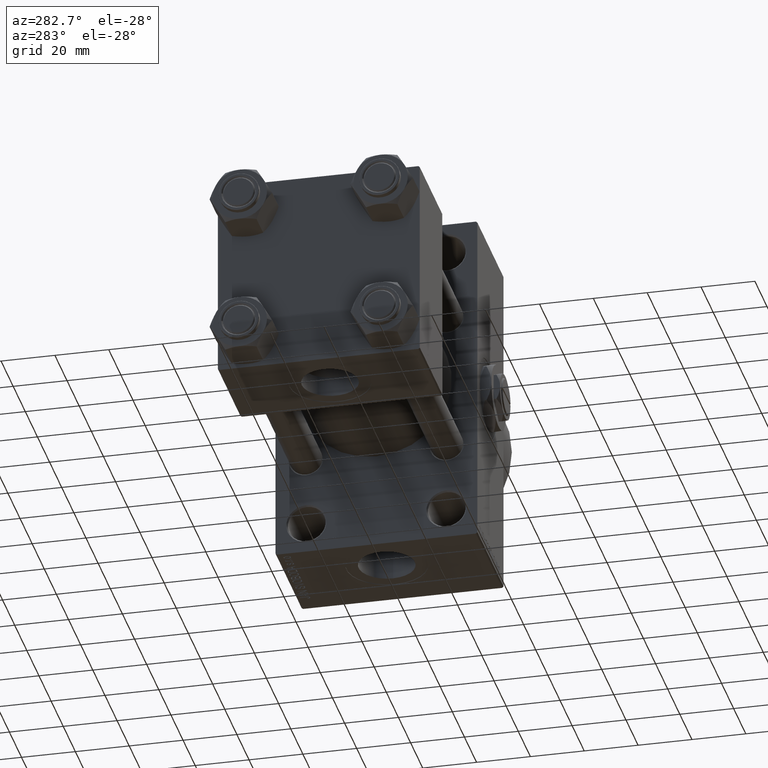
[diagram: clean part render]
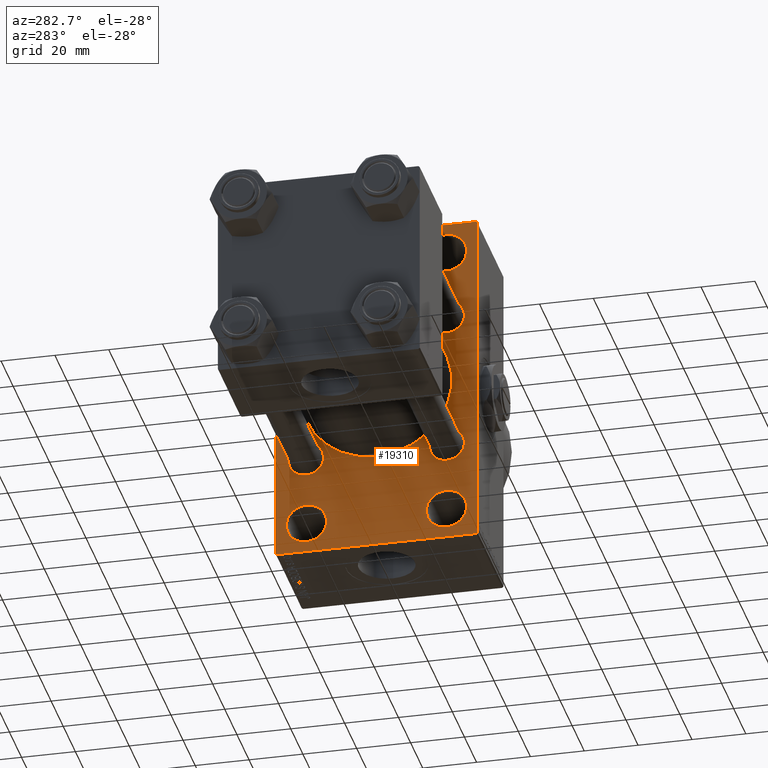
[diagram: same view with one face highlighted and labeled with its STEP entity id]
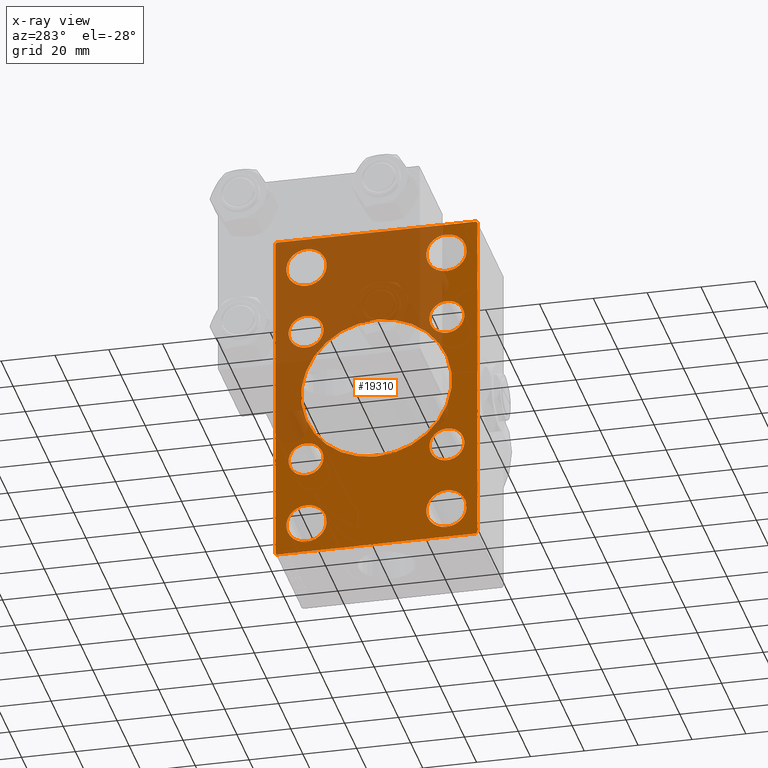
[diagram: x-ray of the same camera — body ghosted, the highlighted face saturated]
A machine part, auxiliary view. The second image highlights one B-rep face of the part: STEP entity #19310.
The next image is the same camera in x-ray: the body ghosted, the highlighted face saturated — about 43% of this face is hidden behind the body in this view.
In plain terms, the highlighted planar face has unit normal (-1, 0, 0).
Its self-contained STEP definition (entity closure, byte-faithful):
#265 = ORIENTED_EDGE ( 'NONE', *, *, #298, .T. ) ;
#298 = EDGE_CURVE ( 'NONE', #41136, #2890, #21021, .T. ) ;
#438 = FACE_BOUND ( 'NONE', #38657, .T. ) ;
#493 = AXIS2_PLACEMENT_3D ( 'NONE', #21912, #6878, #44510 ) ;
#624 = ORIENTED_EDGE ( 'NONE', *, *, #45896, .T. ) ;
#736 = EDGE_CURVE ( 'NONE', #7991, #19808, #7407, .T. ) ;
#1063 = ORIENTED_EDGE ( 'NONE', *, *, #25673, .F. ) ;
#1673 = EDGE_LOOP ( 'NONE', ( #23018, #17743 ) ) ;
#2156 = AXIS2_PLACEMENT_3D ( 'NONE', #31258, #27248, #34521 ) ;
#2248 = CARTESIAN_POINT ( 'NONE',  ( 95.00000000000000000, 26.14999999999999858, -26.15000000000000213 ) ) ;
#2350 = CARTESIAN_POINT ( 'NONE',  ( 95.00000000000000000, -25.99999999999999645, -59.99999999999997158 ) ) ;
#2378 = DIRECTION ( 'NONE',  ( 1.000000000000000000, -0.000000000000000000, 0.000000000000000000 ) ) ;
#2513 = VERTEX_POINT ( 'NONE', #23104 ) ;
#2633 = DIRECTION ( 'NONE',  ( 0.000000000000000000, -0.7071067811865574537, 0.7071067811865376918 ) ) ;
#2635 = EDGE_CURVE ( 'NONE', #7098, #20376, #28977, .T. ) ;
#2697 = DIRECTION ( 'NONE',  ( 0.000000000000000000, 0.000000000000000000, -1.000000000000000000 ) ) ;
#2890 = VERTEX_POINT ( 'NONE', #37342 ) ;
#2966 = CARTESIAN_POINT ( 'NONE',  ( 95.00000000000000000, 26.00000000000000000, -45.00000000000001421 ) ) ;
#3103 = LINE ( 'NONE', #33704, #36259 ) ;
#3816 = DIRECTION ( 'NONE',  ( 0.000000000000000000, 0.000000000000000000, 1.000000000000000000 ) ) ;
#3878 = DIRECTION ( 'NONE',  ( 1.000000000000000000, -0.000000000000000000, 0.000000000000000000 ) ) ;
#4153 = AXIS2_PLACEMENT_3D ( 'NONE', #23758, #42355, #38328 ) ;
#4870 = DIRECTION ( 'NONE',  ( 0.000000000000000000, 0.000000000000000000, 1.000000000000000000 ) ) ;
#5065 = VERTEX_POINT ( 'NONE', #7087 ) ;
#5524 = DIRECTION ( 'NONE',  ( 0.000000000000000000, 0.000000000000000000, 1.000000000000000000 ) ) ;
#5729 = ORIENTED_EDGE ( 'NONE', *, *, #46210, .T. ) ;
#5847 = CARTESIAN_POINT ( 'NONE',  ( 95.00000000000000000, -25.99999999999999645, 59.99999999999997868 ) ) ;
#5849 = CIRCLE ( 'NONE', #40319, 6.500000000000008882 ) ;
#6149 = EDGE_CURVE ( 'NONE', #20376, #7098, #25078, .T. ) ;
#6161 = EDGE_LOOP ( 'NONE', ( #624, #9248 ) ) ;
#6238 = EDGE_LOOP ( 'NONE', ( #265, #12338 ) ) ;
#6261 = DIRECTION ( 'NONE',  ( 1.000000000000000000, -0.000000000000000000, 0.000000000000000000 ) ) ;
#6524 = DIRECTION ( 'NONE',  ( 1.000000000000000000, -0.000000000000000000, 0.000000000000000000 ) ) ;
#6720 = EDGE_LOOP ( 'NONE', ( #8223, #28320 ) ) ;
#6742 = ORIENTED_EDGE ( 'NONE', *, *, #21429, .T. ) ;
#6878 = DIRECTION ( 'NONE',  ( 1.000000000000000000, -0.000000000000000000, 0.000000000000000000 ) ) ;
#7087 = CARTESIAN_POINT ( 'NONE',  ( 95.00000000000000000, 8.269258236473776482E-16, -28.00000000000000000 ) ) ;
#7098 = VERTEX_POINT ( 'NONE', #34851 ) ;
#7328 = DIRECTION ( 'NONE',  ( 1.000000000000000000, -0.000000000000000000, 0.000000000000000000 ) ) ;
#7407 = CIRCLE ( 'NONE', #28231, 7.499999999999978684 ) ;
#7519 = DIRECTION ( 'NONE',  ( 0.000000000000000000, 0.000000000000000000, 1.000000000000000000 ) ) ;
#7599 = EDGE_CURVE ( 'NONE', #2513, #37289, #33130, .T. ) ;
#7727 = FACE_BOUND ( 'NONE', #6238, .T. ) ;
#7991 = VERTEX_POINT ( 'NONE', #8277 ) ;
#8223 = ORIENTED_EDGE ( 'NONE', *, *, #26078, .T. ) ;
#8277 = CARTESIAN_POINT ( 'NONE',  ( 95.00000000000000000, -25.99999999999999645, 45.00000000000002132 ) ) ;
#8448 = CARTESIAN_POINT ( 'NONE',  ( 95.00000000000000000, -36.99999999999995737, 63.99999999999997158 ) ) ;
#9248 = ORIENTED_EDGE ( 'NONE', *, *, #31236, .T. ) ;
#9370 = DIRECTION ( 'NONE',  ( 1.000000000000000000, -0.000000000000000000, 0.000000000000000000 ) ) ;
#9497 = VERTEX_POINT ( 'NONE', #2350 ) ;
#9548 = DIRECTION ( 'NONE',  ( 0.000000000000000000, 0.000000000000000000, -1.000000000000000000 ) ) ;
#9595 = CARTESIAN_POINT ( 'NONE',  ( 95.00000000000000000, 36.99999999999999289, -64.00000000000000000 ) ) ;
#9785 = CARTESIAN_POINT ( 'NONE',  ( 95.00000000000000000, -25.99999999999999645, 52.50000000000000000 ) ) ;
#10043 = DIRECTION ( 'NONE',  ( 0.000000000000000000, 0.000000000000000000, 1.000000000000000000 ) ) ;
#10978 = DIRECTION ( 'NONE',  ( 1.000000000000000000, 0.000000000000000000, 0.000000000000000000 ) ) ;
#11721 = EDGE_CURVE ( 'NONE', #12171, #9497, #26888, .T. ) ;
#11771 = CARTESIAN_POINT ( 'NONE',  ( 95.00000000000000000, 26.14999999999999858, 26.15000000000000213 ) ) ;
#12171 = VERTEX_POINT ( 'NONE', #45825 ) ;
#12230 = DIRECTION ( 'NONE',  ( 0.000000000000000000, 0.000000000000000000, 1.000000000000000000 ) ) ;
#12338 = ORIENTED_EDGE ( 'NONE', *, *, #12362, .T. ) ;
#12362 = EDGE_CURVE ( 'NONE', #2890, #41136, #39740, .T. ) ;
#12395 = DIRECTION ( 'NONE',  ( 0.000000000000000000, 0.000000000000000000, 1.000000000000000000 ) ) ;
#12403 = AXIS2_PLACEMENT_3D ( 'NONE', #33429, #7328, #3816 ) ;
#12822 = ORIENTED_EDGE ( 'NONE', *, *, #7599, .T. ) ;
#12839 = VERTEX_POINT ( 'NONE', #24768 ) ;
#12884 = ORIENTED_EDGE ( 'NONE', *, *, #23032, .T. ) ;
#13051 = VECTOR ( 'NONE', #38660, 1000.000000000000000 ) ;
#13465 = EDGE_LOOP ( 'NONE', ( #15343, #17168 ) ) ;
#13632 = ORIENTED_EDGE ( 'NONE', *, *, #18310, .T. ) ;
#13862 = AXIS2_PLACEMENT_3D ( 'NONE', #9785, #6524, #10043 ) ;
#13911 = DIRECTION ( 'NONE',  ( 0.000000000000000000, 0.000000000000000000, 1.000000000000000000 ) ) ;
#14141 = AXIS2_PLACEMENT_3D ( 'NONE', #31210, #39479, #31704 ) ;
#14550 = ORIENTED_EDGE ( 'NONE', *, *, #27156, .T. ) ;
#14925 = CARTESIAN_POINT ( 'NONE',  ( 95.00000000000000000, 26.00000000000000000, 52.49999999999999289 ) ) ;
#14946 = CARTESIAN_POINT ( 'NONE',  ( 95.00000000000000000, -37.49999999999999289, -63.49999999999997158 ) ) ;
#15108 = CARTESIAN_POINT ( 'NONE',  ( 95.00000000000000000, -26.14999999999999147, 32.65000000000001990 ) ) ;
#15343 = ORIENTED_EDGE ( 'NONE', *, *, #35918, .T. ) ;
#15968 = LINE ( 'NONE', #31275, #21140 ) ;
#16300 = VERTEX_POINT ( 'NONE', #17703 ) ;
#17064 = CIRCLE ( 'NONE', #13862, 7.499999999999978684 ) ;
#17168 = ORIENTED_EDGE ( 'NONE', *, *, #37582, .T. ) ;
#17241 = CIRCLE ( 'NONE', #45310, 28.00000000000000000 ) ;
#17379 = VERTEX_POINT ( 'NONE', #23674 ) ;
#17566 = CARTESIAN_POINT ( 'NONE',  ( 95.00000000000000000, -2.602085213965210642E-15, 0.000000000000000000 ) ) ;
#17703 = CARTESIAN_POINT ( 'NONE',  ( 95.00000000000000000, 36.99999999999997158, 63.99999999999998579 ) ) ;
#17743 = ORIENTED_EDGE ( 'NONE', *, *, #19336, .T. ) ;
#17768 = CARTESIAN_POINT ( 'NONE',  ( 95.00000000000000000, 26.00000000000000000, 59.99999999999997158 ) ) ;
#18310 = EDGE_CURVE ( 'NONE', #37289, #2513, #18957, .T. ) ;
#18595 = LINE ( 'NONE', #48978, #39956 ) ;
#18620 = ORIENTED_EDGE ( 'NONE', *, *, #38805, .T. ) ;
#18633 = EDGE_CURVE ( 'NONE', #29634, #35462, #26033, .T. ) ;
#18957 = CIRCLE ( 'NONE', #14141, 7.499999999999978684 ) ;
#19002 = CIRCLE ( 'NONE', #2156, 7.499999999999978684 ) ;
#19243 = FACE_BOUND ( 'NONE', #21049, .T. ) ;
#19310 = ADVANCED_FACE ( 'NONE', ( #38825, #438, #26790, #46360, #42109, #42587, #19243, #7727, #22771, #23020 ), #38080, .T. ) ;
#19336 = EDGE_CURVE ( 'NONE', #35462, #29634, #49041, .T. ) ;
#19663 = DIRECTION ( 'NONE',  ( 0.000000000000000000, 0.000000000000000000, 1.000000000000000000 ) ) ;
#19801 = EDGE_CURVE ( 'NONE', #22046, #45435, #38617, .T. ) ;
#19808 = VERTEX_POINT ( 'NONE', #5847 ) ;
#19860 = CIRCLE ( 'NONE', #28673, 7.499999999999978684 ) ;
#19926 = CARTESIAN_POINT ( 'NONE',  ( 95.00000000000000000, -26.14999999999999147, -26.15000000000000924 ) ) ;
#20376 = VERTEX_POINT ( 'NONE', #21456 ) ;
#21021 = CIRCLE ( 'NONE', #47471, 6.500000000000008882 ) ;
#21049 = EDGE_LOOP ( 'NONE', ( #35598, #21105 ) ) ;
#21058 = ORIENTED_EDGE ( 'NONE', *, *, #28076, .T. ) ;
#21105 = ORIENTED_EDGE ( 'NONE', *, *, #6149, .T. ) ;
#21140 = VECTOR ( 'NONE', #38560, 1000.000000000000000 ) ;
#21429 = EDGE_CURVE ( 'NONE', #25172, #29046, #3103, .T. ) ;
#21456 = CARTESIAN_POINT ( 'NONE',  ( 95.00000000000000000, 26.14999999999999858, -32.65000000000001279 ) ) ;
#21901 = DIRECTION ( 'NONE',  ( -0.000000000000000000, 0.7071067811865524577, 0.7071067811865426878 ) ) ;
#21912 = CARTESIAN_POINT ( 'NONE',  ( 95.00000000000000000, -26.14999999999999147, -26.15000000000000924 ) ) ;
#22036 = DIRECTION ( 'NONE',  ( 0.000000000000000000, 0.000000000000000000, 1.000000000000000000 ) ) ;
#22046 = VERTEX_POINT ( 'NONE', #44909 ) ;
#22771 = FACE_BOUND ( 'NONE', #6161, .T. ) ;
#22812 = CARTESIAN_POINT ( 'NONE',  ( 95.00000000000000000, -26.14999999999999147, -19.65000000000000213 ) ) ;
#22814 = DIRECTION ( 'NONE',  ( 1.000000000000000000, -0.000000000000000000, 0.000000000000000000 ) ) ;
#22956 = ORIENTED_EDGE ( 'NONE', *, *, #11721, .T. ) ;
#23018 = ORIENTED_EDGE ( 'NONE', *, *, #18633, .T. ) ;
#23020 = FACE_OUTER_BOUND ( 'NONE', #25986, .T. ) ;
#23032 = EDGE_CURVE ( 'NONE', #19808, #7991, #17064, .T. ) ;
#23104 = CARTESIAN_POINT ( 'NONE',  ( 95.00000000000000000, 26.00000000000000000, 45.00000000000001421 ) ) ;
#23140 = CARTESIAN_POINT ( 'NONE',  ( 95.00000000000000000, -25.99999999999999645, 52.50000000000000000 ) ) ;
#23260 = EDGE_LOOP ( 'NONE', ( #12884, #45286 ) ) ;
#23537 = DIRECTION ( 'NONE',  ( 1.000000000000000000, -0.000000000000000000, 0.000000000000000000 ) ) ;
#23674 = CARTESIAN_POINT ( 'NONE',  ( 95.00000000000000000, 26.00000000000000000, -59.99999999999997158 ) ) ;
#23758 = CARTESIAN_POINT ( 'NONE',  ( 95.00000000000000000, 0.000000000000000000, 0.000000000000000000 ) ) ;
#23940 = CARTESIAN_POINT ( 'NONE',  ( 95.00000000000000000, 26.14999999999999858, 26.15000000000000213 ) ) ;
#24768 = CARTESIAN_POINT ( 'NONE',  ( 95.00000000000000000, 37.49999999999999289, -63.50000000000001421 ) ) ;
#24867 = CARTESIAN_POINT ( 'NONE',  ( 95.00000000000000000, -26.14999999999999147, 19.65000000000000213 ) ) ;
#25078 = CIRCLE ( 'NONE', #41139, 6.500000000000008882 ) ;
#25172 = VERTEX_POINT ( 'NONE', #30220 ) ;
#25538 = ORIENTED_EDGE ( 'NONE', *, *, #29298, .T. ) ;
#25673 = EDGE_CURVE ( 'NONE', #16300, #29046, #31145, .T. ) ;
#25986 = EDGE_LOOP ( 'NONE', ( #21058, #5729, #47097, #6742, #1063, #25538, #14550, #46950 ) ) ;
#26033 = CIRCLE ( 'NONE', #12403, 6.500000000000008882 ) ;
#26078 = EDGE_CURVE ( 'NONE', #45435, #22046, #5849, .T. ) ;
#26663 = DIRECTION ( 'NONE',  ( 1.000000000000000000, -0.000000000000000000, 0.000000000000000000 ) ) ;
#26790 = FACE_BOUND ( 'NONE', #13465, .T. ) ;
#26888 = CIRCLE ( 'NONE', #29266, 7.499999999999978684 ) ;
#27156 = EDGE_CURVE ( 'NONE', #27687, #12839, #15968, .T. ) ;
#27248 = DIRECTION ( 'NONE',  ( 1.000000000000000000, -0.000000000000000000, 0.000000000000000000 ) ) ;
#27687 = VERTEX_POINT ( 'NONE', #38368 ) ;
#27996 = DIRECTION ( 'NONE',  ( 0.000000000000000000, -1.000000000000000000, -1.850371707708594563E-16 ) ) ;
#28076 = EDGE_CURVE ( 'NONE', #28504, #38503, #47560, .T. ) ;
#28231 = AXIS2_PLACEMENT_3D ( 'NONE', #23140, #26663, #38452 ) ;
#28320 = ORIENTED_EDGE ( 'NONE', *, *, #19801, .T. ) ;
#28346 = DIRECTION ( 'NONE',  ( 1.000000000000000000, -0.000000000000000000, 0.000000000000000000 ) ) ;
#28504 = VERTEX_POINT ( 'NONE', #9595 ) ;
#28673 = AXIS2_PLACEMENT_3D ( 'NONE', #43339, #23537, #12230 ) ;
#28973 = LINE ( 'NONE', #29723, #34872 ) ;
#28977 = CIRCLE ( 'NONE', #30603, 6.500000000000008882 ) ;
#29025 = CARTESIAN_POINT ( 'NONE',  ( 95.00000000000000000, -2.602085213965210642E-15, 28.00000000000000000 ) ) ;
#29046 = VERTEX_POINT ( 'NONE', #8448 ) ;
#29082 = DIRECTION ( 'NONE',  ( 0.000000000000000000, 0.000000000000000000, 1.000000000000000000 ) ) ;
#29266 = AXIS2_PLACEMENT_3D ( 'NONE', #29818, #44374, #22036 ) ;
#29298 = EDGE_CURVE ( 'NONE', #16300, #27687, #28973, .T. ) ;
#29445 = AXIS2_PLACEMENT_3D ( 'NONE', #38253, #3878, #19663 ) ;
#29634 = VERTEX_POINT ( 'NONE', #15108 ) ;
#29723 = CARTESIAN_POINT ( 'NONE',  ( 95.00000000000000000, 50.49999999999894840, 50.50000000000176215 ) ) ;
#29818 = CARTESIAN_POINT ( 'NONE',  ( 95.00000000000000000, -25.99999999999999645, -52.49999999999999289 ) ) ;
#30220 = CARTESIAN_POINT ( 'NONE',  ( 95.00000000000000000, -37.49999999999999289, 63.49999999999994316 ) ) ;
#30603 = AXIS2_PLACEMENT_3D ( 'NONE', #43174, #28346, #5524 ) ;
#30621 = LINE ( 'NONE', #41929, #43984 ) ;
#30878 = DIRECTION ( 'NONE',  ( 0.000000000000000000, 0.000000000000000000, -1.000000000000000000 ) ) ;
#30895 = CARTESIAN_POINT ( 'NONE',  ( 95.00000000000000000, 37.50000000000000000, 63.99999999999998579 ) ) ;
#31145 = LINE ( 'NONE', #30895, #13051 ) ;
#31210 = CARTESIAN_POINT ( 'NONE',  ( 95.00000000000000000, 26.00000000000000000, 52.49999999999999289 ) ) ;
#31236 = EDGE_CURVE ( 'NONE', #5065, #38233, #17241, .T. ) ;
#31258 = CARTESIAN_POINT ( 'NONE',  ( 95.00000000000000000, 26.00000000000000000, -52.49999999999999289 ) ) ;
#31268 = CARTESIAN_POINT ( 'NONE',  ( 95.00000000000000000, -36.99999999999993605, -64.00000000000001421 ) ) ;
#31275 = CARTESIAN_POINT ( 'NONE',  ( 95.00000000000000000, 37.50000000000000000, 63.99999999999998579 ) ) ;
#31704 = DIRECTION ( 'NONE',  ( 0.000000000000000000, 0.000000000000000000, 1.000000000000000000 ) ) ;
#32326 = CIRCLE ( 'NONE', #36328, 28.00000000000000000 ) ;
#33130 = CIRCLE ( 'NONE', #36353, 7.499999999999978684 ) ;
#33429 = CARTESIAN_POINT ( 'NONE',  ( 95.00000000000000000, -26.14999999999999147, 26.15000000000000924 ) ) ;
#33471 = CIRCLE ( 'NONE', #29445, 7.499999999999978684 ) ;
#33503 = LINE ( 'NONE', #40536, #37917 ) ;
#33704 = CARTESIAN_POINT ( 'NONE',  ( 95.00000000000000000, -50.49999999999970868, 50.50000000000040501 ) ) ;
#33912 = DIRECTION ( 'NONE',  ( -0.000000000000000000, -0.7071067811865573427, -0.7071067811865378028 ) ) ;
#34071 = VERTEX_POINT ( 'NONE', #14946 ) ;
#34314 = CARTESIAN_POINT ( 'NONE',  ( 95.00000000000000000, -26.14999999999999147, 26.15000000000000924 ) ) ;
#34521 = DIRECTION ( 'NONE',  ( 0.000000000000000000, 0.000000000000000000, 1.000000000000000000 ) ) ;
#34851 = CARTESIAN_POINT ( 'NONE',  ( 95.00000000000000000, 26.14999999999999858, -19.64999999999999503 ) ) ;
#34872 = VECTOR ( 'NONE', #41285, 1000.000000000000000 ) ;
#35042 = DIRECTION ( 'NONE',  ( 0.000000000000000000, 0.000000000000000000, 1.000000000000000000 ) ) ;
#35462 = VERTEX_POINT ( 'NONE', #24867 ) ;
#35598 = ORIENTED_EDGE ( 'NONE', *, *, #2635, .T. ) ;
#35918 = EDGE_CURVE ( 'NONE', #47350, #17379, #19860, .T. ) ;
#36259 = VECTOR ( 'NONE', #21901, 1000.000000000000000 ) ;
#36328 = AXIS2_PLACEMENT_3D ( 'NONE', #48121, #10978, #2697 ) ;
#36353 = AXIS2_PLACEMENT_3D ( 'NONE', #14925, #2378, #13911 ) ;
#37289 = VERTEX_POINT ( 'NONE', #17768 ) ;
#37342 = CARTESIAN_POINT ( 'NONE',  ( 95.00000000000000000, -26.14999999999999147, -32.65000000000001990 ) ) ;
#37346 = EDGE_LOOP ( 'NONE', ( #13632, #12822 ) ) ;
#37582 = EDGE_CURVE ( 'NONE', #17379, #47350, #19002, .T. ) ;
#37917 = VECTOR ( 'NONE', #2633, 999.9999999999998863 ) ;
#38080 = PLANE ( 'NONE',  #4153 ) ;
#38233 = VERTEX_POINT ( 'NONE', #29025 ) ;
#38253 = CARTESIAN_POINT ( 'NONE',  ( 95.00000000000000000, -25.99999999999999645, -52.49999999999999289 ) ) ;
#38328 = DIRECTION ( 'NONE',  ( -0.000000000000000000, 0.000000000000000000, 1.000000000000000000 ) ) ;
#38368 = CARTESIAN_POINT ( 'NONE',  ( 95.00000000000000000, 37.50000000000000000, 63.49999999999998579 ) ) ;
#38452 = DIRECTION ( 'NONE',  ( 0.000000000000000000, 0.000000000000000000, 1.000000000000000000 ) ) ;
#38503 = VERTEX_POINT ( 'NONE', #31268 ) ;
#38560 = DIRECTION ( 'NONE',  ( 0.000000000000000000, -5.421010862427522170E-17, -1.000000000000000000 ) ) ;
#38567 = DIRECTION ( 'NONE',  ( 1.000000000000000000, -0.000000000000000000, 0.000000000000000000 ) ) ;
#38617 = CIRCLE ( 'NONE', #46646, 6.500000000000008882 ) ;
#38657 = EDGE_LOOP ( 'NONE', ( #22956, #18620 ) ) ;
#38660 = DIRECTION ( 'NONE',  ( 0.000000000000000000, -1.000000000000000000, -1.850371707708594563E-16 ) ) ;
#38805 = EDGE_CURVE ( 'NONE', #9497, #12171, #33471, .T. ) ;
#38825 = FACE_BOUND ( 'NONE', #23260, .T. ) ;
#39247 = CARTESIAN_POINT ( 'NONE',  ( 95.00000000000000000, 26.14999999999999858, 32.65000000000001990 ) ) ;
#39479 = DIRECTION ( 'NONE',  ( 1.000000000000000000, -0.000000000000000000, 0.000000000000000000 ) ) ;
#39740 = CIRCLE ( 'NONE', #493, 6.500000000000008882 ) ;
#39932 = DIRECTION ( 'NONE',  ( 1.000000000000000000, 0.000000000000000000, 0.000000000000000000 ) ) ;
#39956 = VECTOR ( 'NONE', #33912, 1000.000000000000000 ) ;
#40319 = AXIS2_PLACEMENT_3D ( 'NONE', #11771, #22814, #7519 ) ;
#40536 = CARTESIAN_POINT ( 'NONE',  ( 95.00000000000000000, -50.49999999999945999, -50.50000000000086686 ) ) ;
#40838 = EDGE_CURVE ( 'NONE', #12839, #28504, #18595, .T. ) ;
#41039 = AXIS2_PLACEMENT_3D ( 'NONE', #34314, #38567, #35042 ) ;
#41136 = VERTEX_POINT ( 'NONE', #22812 ) ;
#41139 = AXIS2_PLACEMENT_3D ( 'NONE', #2248, #6261, #29082 ) ;
#41285 = DIRECTION ( 'NONE',  ( 0.000000000000000000, 0.7071067811865672237, -0.7071067811865279218 ) ) ;
#41929 = CARTESIAN_POINT ( 'NONE',  ( 95.00000000000000000, -37.49999999999999289, 63.99999999999997158 ) ) ;
#42109 = FACE_BOUND ( 'NONE', #1673, .T. ) ;
#42248 = EDGE_CURVE ( 'NONE', #25172, #34071, #30621, .T. ) ;
#42355 = DIRECTION ( 'NONE',  ( -1.000000000000000000, 0.000000000000000000, -0.000000000000000000 ) ) ;
#42587 = FACE_BOUND ( 'NONE', #6720, .T. ) ;
#43174 = CARTESIAN_POINT ( 'NONE',  ( 95.00000000000000000, 26.14999999999999858, -26.15000000000000213 ) ) ;
#43339 = CARTESIAN_POINT ( 'NONE',  ( 95.00000000000000000, 26.00000000000000000, -52.49999999999999289 ) ) ;
#43984 = VECTOR ( 'NONE', #30878, 1000.000000000000000 ) ;
#44374 = DIRECTION ( 'NONE',  ( 1.000000000000000000, -0.000000000000000000, 0.000000000000000000 ) ) ;
#44395 = VECTOR ( 'NONE', #27996, 1000.000000000000000 ) ;
#44510 = DIRECTION ( 'NONE',  ( 0.000000000000000000, 0.000000000000000000, 1.000000000000000000 ) ) ;
#44909 = CARTESIAN_POINT ( 'NONE',  ( 95.00000000000000000, 26.14999999999999858, 19.64999999999999147 ) ) ;
#45286 = ORIENTED_EDGE ( 'NONE', *, *, #736, .T. ) ;
#45310 = AXIS2_PLACEMENT_3D ( 'NONE', #17566, #39932, #9548 ) ;
#45435 = VERTEX_POINT ( 'NONE', #39247 ) ;
#45802 = DIRECTION ( 'NONE',  ( 1.000000000000000000, -0.000000000000000000, 0.000000000000000000 ) ) ;
#45825 = CARTESIAN_POINT ( 'NONE',  ( 95.00000000000000000, -25.99999999999999645, -45.00000000000001421 ) ) ;
#45896 = EDGE_CURVE ( 'NONE', #38233, #5065, #32326, .T. ) ;
#46210 = EDGE_CURVE ( 'NONE', #38503, #34071, #33503, .T. ) ;
#46360 = FACE_BOUND ( 'NONE', #37346, .T. ) ;
#46646 = AXIS2_PLACEMENT_3D ( 'NONE', #23940, #9370, #4870 ) ;
#46950 = ORIENTED_EDGE ( 'NONE', *, *, #40838, .T. ) ;
#47085 = CARTESIAN_POINT ( 'NONE',  ( 95.00000000000000000, 37.49999999999999289, -64.00000000000000000 ) ) ;
#47097 = ORIENTED_EDGE ( 'NONE', *, *, #42248, .F. ) ;
#47350 = VERTEX_POINT ( 'NONE', #2966 ) ;
#47471 = AXIS2_PLACEMENT_3D ( 'NONE', #19926, #45802, #12395 ) ;
#47560 = LINE ( 'NONE', #47085, #44395 ) ;
#48121 = CARTESIAN_POINT ( 'NONE',  ( 95.00000000000000000, -2.602085213965210642E-15, 0.000000000000000000 ) ) ;
#48978 = CARTESIAN_POINT ( 'NONE',  ( 95.00000000000000000, 50.49999999999948841, -50.50000000000088107 ) ) ;
#49041 = CIRCLE ( 'NONE', #41039, 6.500000000000008882 ) ;